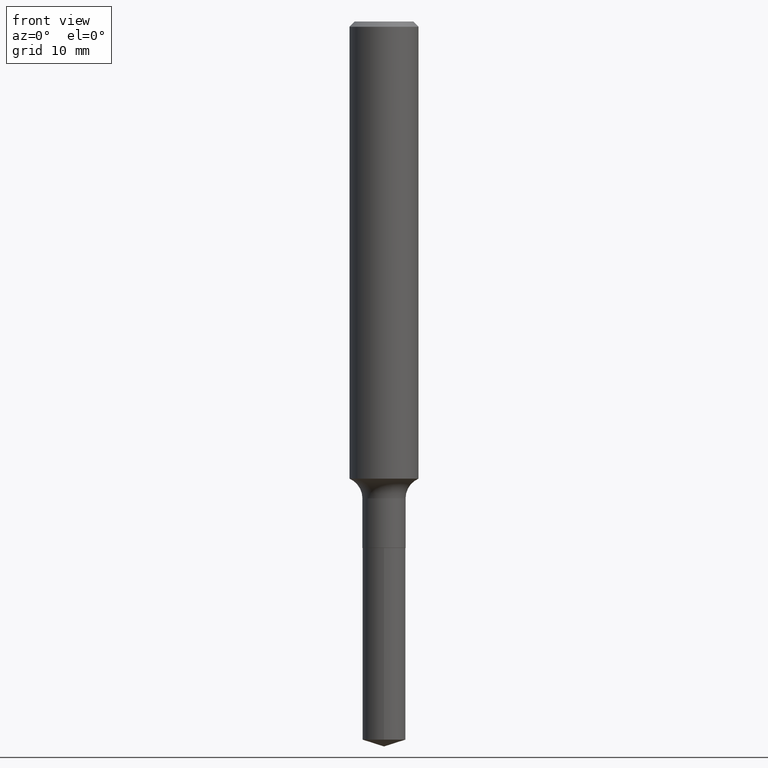
[diagram: clean part render]
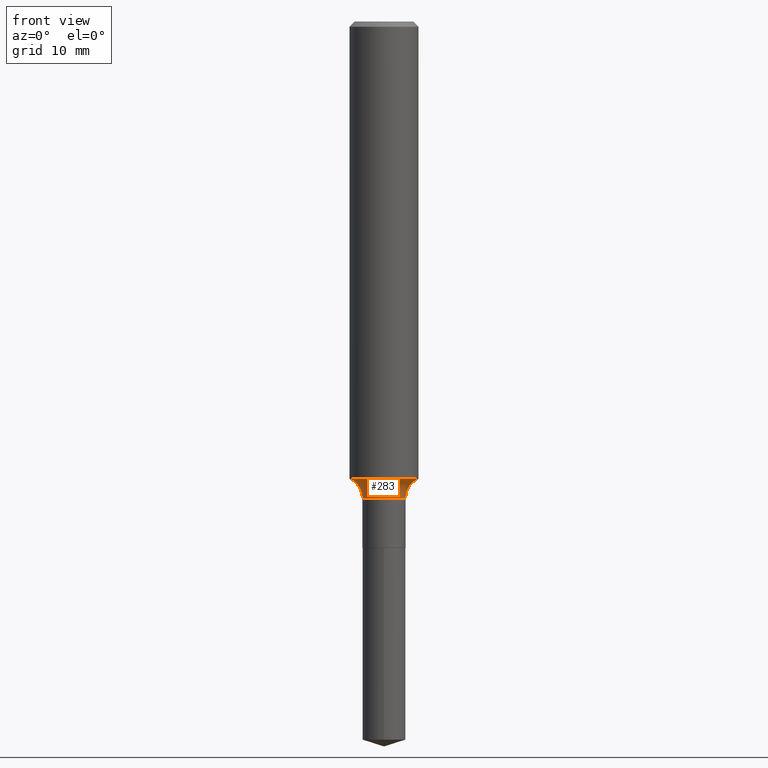
[diagram: same view with one face highlighted and labeled with its STEP entity id]
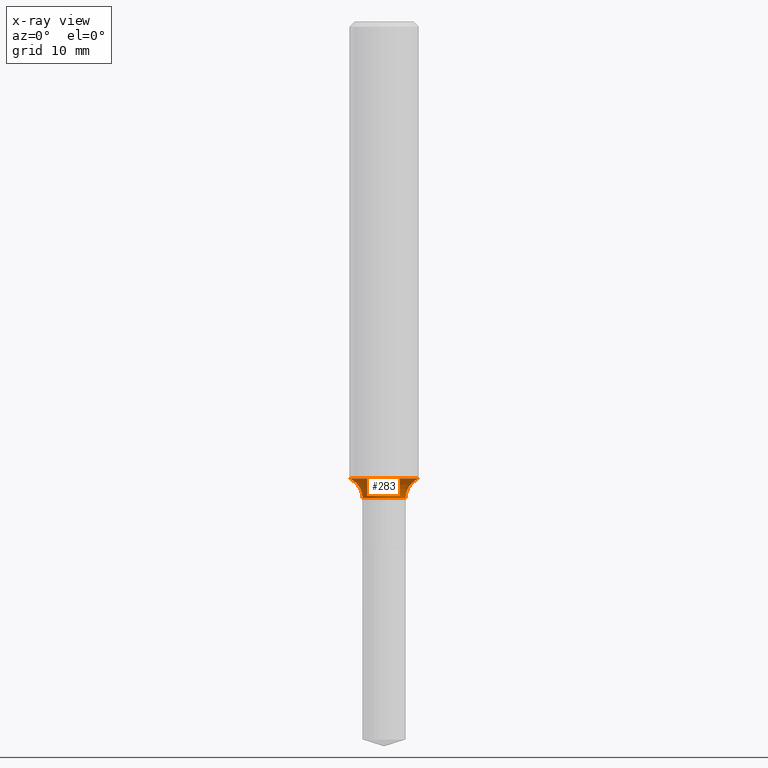
[diagram: x-ray of the same camera — body ghosted, the highlighted face saturated]
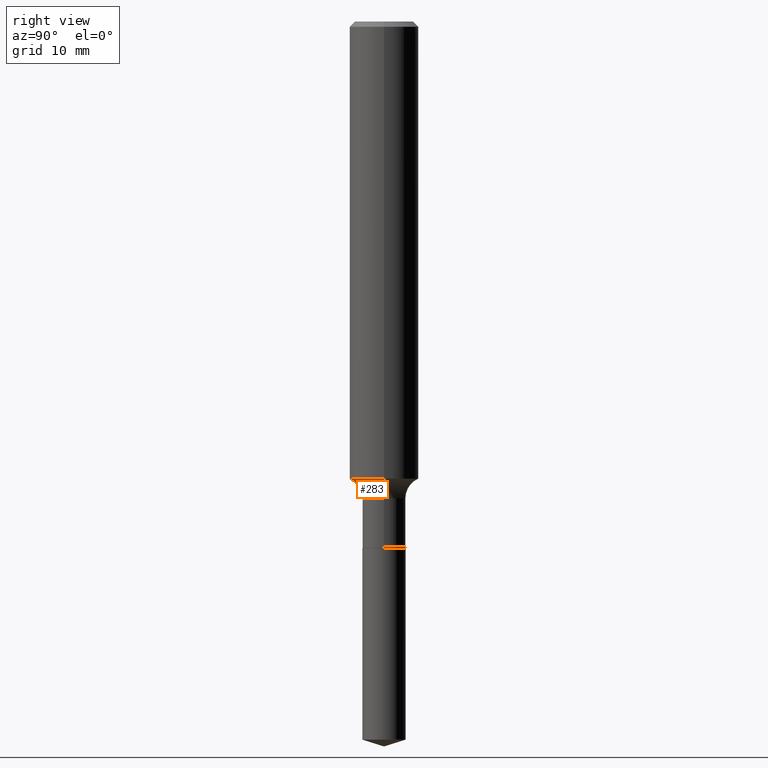
[diagram: same view with one face highlighted and labeled with its STEP entity id]
A machine part, front view. The second image highlights one B-rep face of the part: STEP entity #283.
The next image is the same camera in x-ray: the body ghosted, the highlighted face saturated — about 0% of this face is hidden behind the body in this view.
A second angle (right view) of the same face is appended — the face is thin or edge-on in the first view.
In plain terms, the highlighted toroidal blend (fillet) surface has major radius 3.9649 mm and minor (blend) radius 1.9812 mm.
Its self-contained STEP definition (entity closure, byte-faithful):
#4 = ORIENTED_EDGE ( 'NONE', *, *, #383, .T. ) ;
#15 = CARTESIAN_POINT ( 'NONE',  ( 0.1560999999999999333, -7.118432153633400631E-15, -1.726600000000000135 ) ) ;
#27 = DIRECTION ( 'NONE',  ( -2.445468806185136597E-29, 3.491481338843145583E-15, 1.000000000000000000 ) ) ;
#31 = DIRECTION ( 'NONE',  ( 1.000000000000000000, -6.982962677686265922E-15, 4.883557194083112901E-29 ) ) ;
#48 = CARTESIAN_POINT ( 'NONE',  ( -0.1250000000000003053, -4.890461520389817899E-15, -1.655068258793735314 ) ) ;
#50 = VERTEX_POINT ( 'NONE', #112 ) ;
#68 = DIRECTION ( 'NONE',  ( -2.445468806185136597E-29, 3.491481338843145583E-15, 1.000000000000000000 ) ) ;
#70 = AXIS2_PLACEMENT_3D ( 'NONE', #308, #68, #107 ) ;
#74 = DIRECTION ( 'NONE',  ( 1.000000000000000000, -6.982962677686267499E-15, 0.000000000000000000 ) ) ;
#86 = ORIENTED_EDGE ( 'NONE', *, *, #452, .T. ) ;
#89 = DIRECTION ( 'NONE',  ( 7.105427357601001859E-15, 1.000000000000000000, -3.491481338843145583E-15 ) ) ;
#90 = CIRCLE ( 'NONE', #386, 0.1250000000000001943 ) ;
#107 = DIRECTION ( 'NONE',  ( 1.000000000000000000, -6.982962677686269077E-15, 0.000000000000000000 ) ) ;
#110 = TOROIDAL_SURFACE ( 'NONE', #464, 0.1560999999999999333, 0.07800000000000002764 ) ;
#112 = CARTESIAN_POINT ( 'NONE',  ( -0.07809999999999997500, -5.786119956911341584E-15, -1.726600000000000135 ) ) ;
#156 = CIRCLE ( 'NONE', #282, 0.07800000000000002764 ) ;
#194 = AXIS2_PLACEMENT_3D ( 'NONE', #15, #468, #299 ) ;
#217 = VERTEX_POINT ( 'NONE', #254 ) ;
#220 = VERTEX_POINT ( 'NONE', #48 ) ;
#231 = CIRCLE ( 'NONE', #70, 0.07809999999999997500 ) ;
#241 = EDGE_CURVE ( 'NONE', #423, #217, #408, .T. ) ;
#249 = EDGE_CURVE ( 'NONE', #220, #423, #90, .T. ) ;
#254 = CARTESIAN_POINT ( 'NONE',  ( 0.07809999999999997500, -6.573761064773872585E-15, -1.726600000000000135 ) ) ;
#261 = EDGE_LOOP ( 'NONE', ( #284, #86, #4, #291 ) ) ;
#282 = AXIS2_PLACEMENT_3D ( 'NONE', #378, #89, #297 ) ;
#283 = ADVANCED_FACE ( 'NONE', ( #306 ), #110, .F. ) ;
#284 = ORIENTED_EDGE ( 'NONE', *, *, #249, .F. ) ;
#291 = ORIENTED_EDGE ( 'NONE', *, *, #241, .F. ) ;
#297 = DIRECTION ( 'NONE',  ( -1.000000000000000000, 7.105427357601001859E-15, 0.000000000000000000 ) ) ;
#299 = DIRECTION ( 'NONE',  ( 1.000000000000000000, -6.982962677686268288E-15, 0.000000000000000000 ) ) ;
#306 = FACE_OUTER_BOUND ( 'NONE', #261, .T. ) ;
#308 = CARTESIAN_POINT ( 'NONE',  ( 4.222346440759256809E-29, -6.028391679646575149E-15, -1.726600000000000135 ) ) ;
#314 = CARTESIAN_POINT ( 'NONE',  ( 4.222346440759256809E-29, -6.028391679646575149E-15, -1.726600000000000135 ) ) ;
#374 = CARTESIAN_POINT ( 'NONE',  ( 0.1250000000000003053, -6.651510274800731204E-15, -1.655068258793735314 ) ) ;
#378 = CARTESIAN_POINT ( 'NONE',  ( -0.1560999999999999333, -4.919234469125058641E-15, -1.726600000000000135 ) ) ;
#382 = DIRECTION ( 'NONE',  ( -2.445468806185136597E-29, 3.491481338843145583E-15, 1.000000000000000000 ) ) ;
#383 = EDGE_CURVE ( 'NONE', #50, #217, #231, .T. ) ;
#386 = AXIS2_PLACEMENT_3D ( 'NONE', #446, #27, #74 ) ;
#408 = CIRCLE ( 'NONE', #194, 0.07800000000000002764 ) ;
#423 = VERTEX_POINT ( 'NONE', #374 ) ;
#446 = CARTESIAN_POINT ( 'NONE',  ( 4.047417798987228218E-29, -5.778639940089945498E-15, -1.655068258793735314 ) ) ;
#452 = EDGE_CURVE ( 'NONE', #220, #50, #156, .T. ) ;
#464 = AXIS2_PLACEMENT_3D ( 'NONE', #314, #382, #31 ) ;
#468 = DIRECTION ( 'NONE',  ( -6.982962677686266711E-15, -1.000000000000000000, 3.491481338843145583E-15 ) ) ;